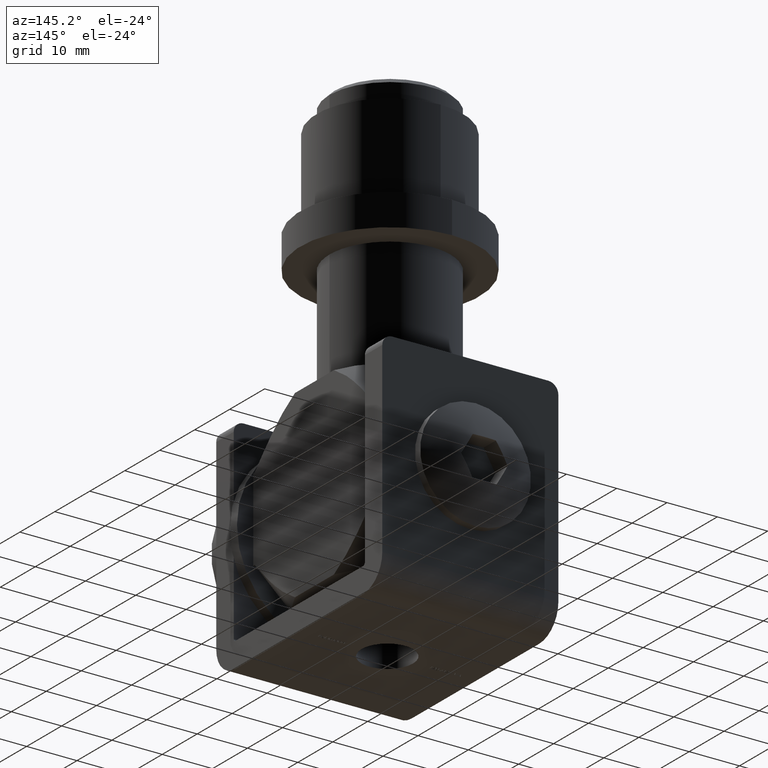
[diagram: clean part render]
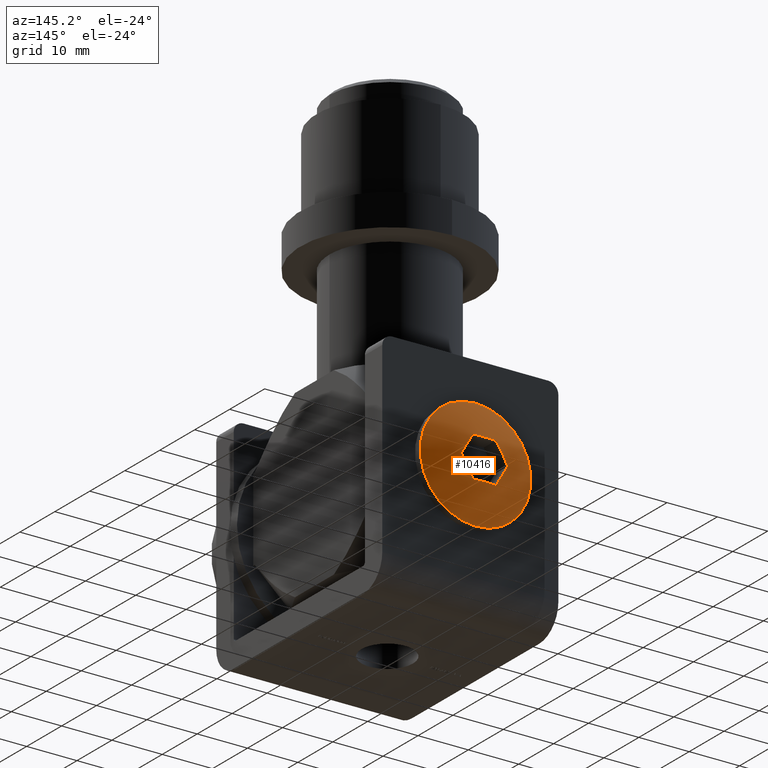
[diagram: same view with one face highlighted and labeled with its STEP entity id]
A machine part, auxiliary view. The second image highlights one B-rep face of the part: STEP entity #10416.
In plain terms, the highlighted spherical surface has radius 21.6667 mm.
Its self-contained STEP definition (entity closure, byte-faithful):
#190 = DIRECTION ( 'NONE',  ( -1.000000000000000000, 0.000000000000000000, 2.036611641104512824E-16 ) ) ;
#239 = CIRCLE ( 'NONE', #4453, 21.29423500491258281 ) ;
#276 = CARTESIAN_POINT ( 'NONE',  ( 2.309401076758502480, -4.001968412409906861, -4.000000000000000000 ) ) ;
#305 = ORIENTED_EDGE ( 'NONE', *, *, #4513, .T. ) ;
#314 = EDGE_LOOP ( 'NONE', ( #7603 ) ) ;
#481 = VERTEX_POINT ( 'NONE', #1618 ) ;
#534 = DIRECTION ( 'NONE',  ( 0.5000000000000001110, 0.000000000000000000, -0.8660254037844387076 ) ) ;
#806 = DIRECTION ( 'NONE',  ( -1.000000000000000000, 0.000000000000000000, 0.000000000000000000 ) ) ;
#1294 = DIRECTION ( 'NONE',  ( 1.000000000000000000, 0.000000000000000000, 0.000000000000000000 ) ) ;
#1341 = EDGE_CURVE ( 'NONE', #481, #481, #11410, .T. ) ;
#1438 = CIRCLE ( 'NONE', #11014, 21.29423500491258281 ) ;
#1453 = AXIS2_PLACEMENT_3D ( 'NONE', #14317, #7450, #534 ) ;
#1480 = EDGE_CURVE ( 'NONE', #2830, #9840, #239, .T. ) ;
#1618 = CARTESIAN_POINT ( 'NONE',  ( 0.000000000000000000, -1.500000000000004885, -10.99999999999999112 ) ) ;
#1897 = CARTESIAN_POINT ( 'NONE',  ( 3.464101615137753054, 17.16666666666666430, -2.000000000000000444 ) ) ;
#2346 = CARTESIAN_POINT ( 'NONE',  ( 0.000000000000000000, 17.16666666666666430, -4.000000000000000000 ) ) ;
#2459 = CARTESIAN_POINT ( 'NONE',  ( 7.511572993685799101E-16, 17.16666666666666430, 4.000000000000000000 ) ) ;
#2570 = CARTESIAN_POINT ( 'NONE',  ( -3.464101615137754830, 17.16666666666666430, 2.000000000000000888 ) ) ;
#2830 = VERTEX_POINT ( 'NONE', #276 ) ;
#2918 = DIRECTION ( 'NONE',  ( 0.8660254037844387076, -0.000000000000000000, -0.5000000000000003331 ) ) ;
#3450 = ORIENTED_EDGE ( 'NONE', *, *, #11779, .T. ) ;
#3733 = DIRECTION ( 'NONE',  ( -0.5000000000000002220, 0.000000000000000000, -0.8660254037844385966 ) ) ;
#4167 = CARTESIAN_POINT ( 'NONE',  ( 2.309401076758503368, -4.001968412409906861, 3.999999999999999112 ) ) ;
#4453 = AXIS2_PLACEMENT_3D ( 'NONE', #2346, #5919, #1294 ) ;
#4513 = EDGE_CURVE ( 'NONE', #9840, #9557, #14419, .T. ) ;
#4664 = DIRECTION ( 'NONE',  ( -0.5000000000000001110, 0.000000000000000000, 0.8660254037844387076 ) ) ;
#5144 = EDGE_CURVE ( 'NONE', #7628, #12042, #1438, .T. ) ;
#5173 = CARTESIAN_POINT ( 'NONE',  ( 0.000000000000000000, -1.500000000000004885, 0.000000000000000000 ) ) ;
#5340 = DIRECTION ( 'NONE',  ( 0.5000000000000002220, 0.000000000000000000, 0.8660254037844384856 ) ) ;
#5723 = ORIENTED_EDGE ( 'NONE', *, *, #13860, .T. ) ;
#5730 = DIRECTION ( 'NONE',  ( 0.8660254037844388186, 0.000000000000000000, 0.5000000000000001110 ) ) ;
#5791 = ORIENTED_EDGE ( 'NONE', *, *, #5144, .T. ) ;
#5796 = CARTESIAN_POINT ( 'NONE',  ( -2.309401076758502924, -4.001968412409906861, 4.000000000000000888 ) ) ;
#5919 = DIRECTION ( 'NONE',  ( -0.000000000000000000, -0.000000000000000000, -1.000000000000000000 ) ) ;
#6000 = CARTESIAN_POINT ( 'NONE',  ( -4.618802153517008513, -4.001968412409903308, -2.168404344971008868E-15 ) ) ;
#6284 = DIRECTION ( 'NONE',  ( 0.000000000000000000, 0.000000000000000000, -1.000000000000000000 ) ) ;
#6384 = DIRECTION ( 'NONE',  ( -0.000000000000000000, -1.000000000000000000, -0.000000000000000000 ) ) ;
#6454 = CARTESIAN_POINT ( 'NONE',  ( 0.000000000000000000, 17.16666666666666430, 0.000000000000000000 ) ) ;
#7053 = FACE_OUTER_BOUND ( 'NONE', #12360, .T. ) ;
#7450 = DIRECTION ( 'NONE',  ( -0.8660254037844385966, -0.000000000000000000, -0.5000000000000001110 ) ) ;
#7603 = ORIENTED_EDGE ( 'NONE', *, *, #1341, .T. ) ;
#7604 = FACE_OUTER_BOUND ( 'NONE', #314, .T. ) ;
#7628 = VERTEX_POINT ( 'NONE', #4167 ) ;
#7664 = CARTESIAN_POINT ( 'NONE',  ( 4.618802153517004960, -4.001968412409906861, -8.673617379884035472E-16 ) ) ;
#7910 = EDGE_CURVE ( 'NONE', #9557, #9499, #8359, .T. ) ;
#8215 = DIRECTION ( 'NONE',  ( 1.877893248421449775E-16, 0.000000000000000000, 1.000000000000000000 ) ) ;
#8291 = CIRCLE ( 'NONE', #13718, 21.29423500491258281 ) ;
#8359 = CIRCLE ( 'NONE', #10824, 21.29423500491257926 ) ;
#8760 = ORIENTED_EDGE ( 'NONE', *, *, #7910, .T. ) ;
#9499 = VERTEX_POINT ( 'NONE', #5796 ) ;
#9557 = VERTEX_POINT ( 'NONE', #6000 ) ;
#9840 = VERTEX_POINT ( 'NONE', #9910 ) ;
#9910 = CARTESIAN_POINT ( 'NONE',  ( -2.309401076758504701, -4.001968412409906861, -4.000000000000000000 ) ) ;
#10005 = ORIENTED_EDGE ( 'NONE', *, *, #1480, .T. ) ;
#10416 = ADVANCED_FACE ( 'NONE', ( #7604, #7053 ), #12436, .T. ) ;
#10624 = DIRECTION ( 'NONE',  ( -0.8660254037844384856, -0.000000000000000000, 0.5000000000000001110 ) ) ;
#10824 = AXIS2_PLACEMENT_3D ( 'NONE', #2570, #10624, #3733 ) ;
#11014 = AXIS2_PLACEMENT_3D ( 'NONE', #13766, #5730, #4664 ) ;
#11016 = AXIS2_PLACEMENT_3D ( 'NONE', #5173, #6384, #6284 ) ;
#11189 = DIRECTION ( 'NONE',  ( -0.000000000000000000, -0.000000000000000000, -1.000000000000000000 ) ) ;
#11410 = CIRCLE ( 'NONE', #11016, 10.99999999999999112 ) ;
#11779 = EDGE_CURVE ( 'NONE', #9499, #7628, #8291, .T. ) ;
#12042 = VERTEX_POINT ( 'NONE', #7664 ) ;
#12202 = CIRCLE ( 'NONE', #14797, 21.29423500491258636 ) ;
#12360 = EDGE_LOOP ( 'NONE', ( #8760, #3450, #5791, #5723, #10005, #305 ) ) ;
#12436 = SPHERICAL_SURFACE ( 'NONE', #13799, 21.66666666666666430 ) ;
#13718 = AXIS2_PLACEMENT_3D ( 'NONE', #2459, #8215, #190 ) ;
#13766 = CARTESIAN_POINT ( 'NONE',  ( 3.464101615137754386, 17.16666666666666430, 2.000000000000000000 ) ) ;
#13799 = AXIS2_PLACEMENT_3D ( 'NONE', #6454, #11189, #806 ) ;
#13860 = EDGE_CURVE ( 'NONE', #12042, #2830, #12202, .T. ) ;
#14317 = CARTESIAN_POINT ( 'NONE',  ( -3.464101615137756163, 17.16666666666666430, -2.000000000000001332 ) ) ;
#14419 = CIRCLE ( 'NONE', #1453, 21.29423500491258281 ) ;
#14797 = AXIS2_PLACEMENT_3D ( 'NONE', #1897, #2918, #5340 ) ;